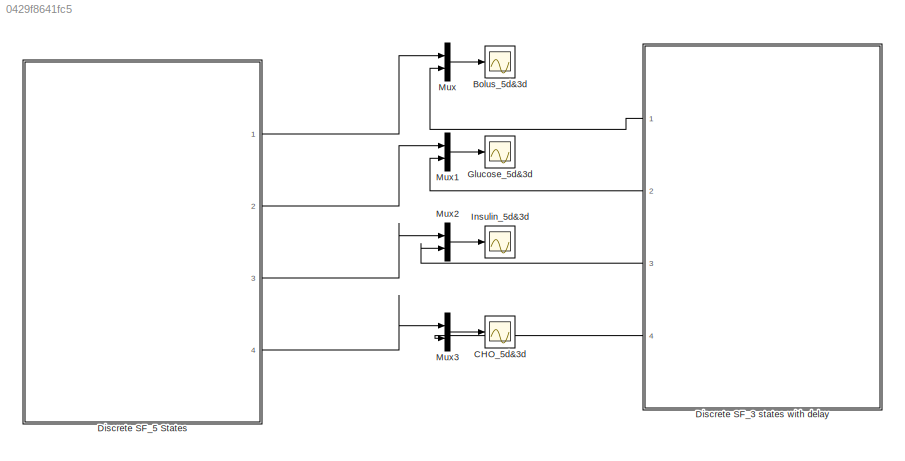
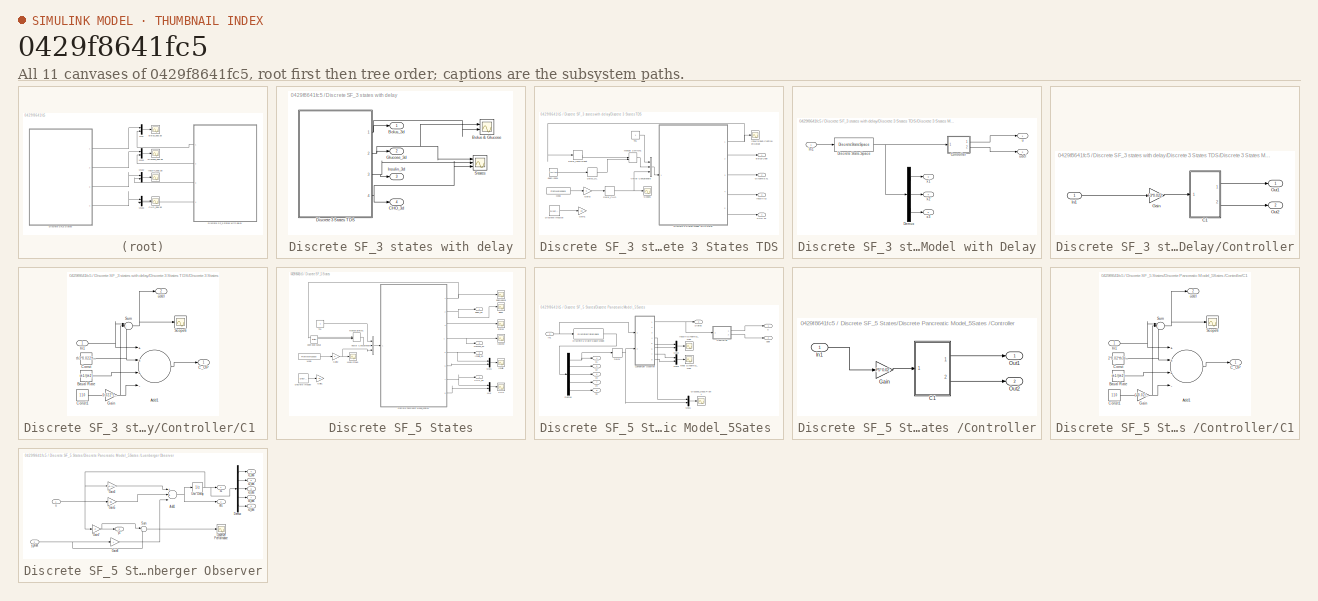
[diagram: thumbnail index - all 11 canvases of the model, root first then tree order]
MODEL slx_0429f8641fc5
KIND model
CONFIG AbsTol = auto
CONFIG EnableMultiTasking = off
CONFIG FixedStep = auto
CONFIG MaxStep = auto
CONFIG MinStep = auto
CONFIG RelTol = 1e-3
CONFIG SampleTimeConstraint = Unconstrained
CONFIG Solver = VariableStepAuto
CONFIG SolverName = VariableStepAuto
CONFIG StartTime = 0.0
CONFIG StopTime = 1500
BLOCK [Scope] Bolus_5d&3d
  Floating = off
  NumInputPorts = 1
  Ports = [1]
  ScopeSpecificationString = Simulink.scopes.TimeScopeBlockCfg('CurrentConfiguration', extmgr.ConfigurationSet(extmgr.Configuration('Core','General UI',true,'FigureColor',[1 1 1]),extmgr.Configuration('Core','Source UI',true),extmgr.Configuration('Sources','WiredSimulink',true,'DataLoggingVariableName','ScopeData2'),extmgr.Configuration('Visuals','Time Domain',true,'SerializedDisplays',{struct('MinYLimReal','-0.03779','MaxYLi...<+1790ch>
BLOCK [Scope] CHO_5d&3d
  Floating = off
  NumInputPorts = 1
  Ports = [1]
  ScopeSpecificationString = Simulink.scopes.TimeScopeBlockCfg('CurrentConfiguration', extmgr.ConfigurationSet(extmgr.Configuration('Core','General UI',true,'FigureColor',[1 1 1]),extmgr.Configuration('Core','Source UI',true),extmgr.Configuration('Sources','WiredSimulink',true,'DataLoggingVariableName','ScopeData5'),extmgr.Configuration('Visuals','Time Domain',true,'SerializedDisplays',{struct('MinYLimReal','-0.36577','MaxYLi...<+1806ch>
BLOCK [SubSystem] Discrete SF_3 states with delay
  Ports = [0, 4]
  RequestExecContextInheritance = off
BLOCK [Scope] Discrete SF_3 states with delay/Bolus & Glucose
  Floating = off
  NumInputPorts = 2
  Ports = [2]
  ScopeSpecificationString = Simulink.scopes.TimeScopeBlockCfg('CurrentConfiguration', extmgr.ConfigurationSet(extmgr.Configuration('Core','General UI',true),extmgr.Configuration('Core','Source UI',true),extmgr.Configuration('Sources','WiredSimulink',true,'DataLoggingVariableName','ScopeData2'),extmgr.Configuration('Visuals','Time Domain',true),extmgr.Configuration('Tools','Plot Navigation',true),extmgr.Configuration('Tools',...<+58ch>
BLOCK [Outport] Discrete SF_3 states with delay/Bolus_3d
  IconDisplay = Port number
BLOCK [Outport] Discrete SF_3 states with delay/CHO_3d
  IconDisplay = Port number
  Port = 4
BLOCK [SubSystem] Discrete SF_3 states with delay/Discrete 3 States TDS
  Ports = [0, 4]
  RequestExecContextInheritance = off
BLOCK [Outport] Discrete SF_3 states with delay/Discrete 3 States TDS/Bolus//Udel
  IconDisplay = Port number
BLOCK [Outport] Discrete SF_3 states with delay/Discrete 3 States TDS/CHO x3
  IconDisplay = Port number
  Port = 4
BLOCK [Delay] Discrete SF_3 states with delay/Discrete 3 States TDS/Delay_CHO
  DelayLength = 30
  InitialCondition = 0
  InputPortMap = u0
  Ports = [1, 1]
BLOCK [Delay] Discrete SF_3 states with delay/Discrete 3 States TDS/Delay_InsulinInput
  DelayLength = 20
  InitialCondition = th1/th2
  InputPortMap = u0
  Ports = [1, 1]
BLOCK [Delay] Discrete SF_3 states with delay/Discrete 3 States TDS/Delay_OL
  DelayLength = 15
  InitialCondition = th1/th2
  InputPortMap = u0
  Ports = [1, 1]
BLOCK [SubSystem] Discrete SF_3 states with delay/Discrete 3 States TDS/Discrete  3 States Model with Delay
  Ports = [1, 5]
  RequestExecContextInheritance = off
BLOCK [SubSystem] Discrete SF_3 states with delay/Discrete 3 States TDS/Discrete  3 States Model with Delay/Controller
  Ports = [1, 2]
  RequestExecContextInheritance = off
BLOCK [SubSystem] Discrete SF_3 states with delay/Discrete 3 States TDS/Discrete  3 States Model with Delay/Controller/C1 
  Ports = [1, 2]
  RequestExecContextInheritance = off
BLOCK [Sum] Discrete SF_3 states with delay/Discrete 3 States TDS/Discrete  3 States Model with Delay/Controller/C1 /Add1
  InputSameDT = off
  Inputs = +++-
  OutDataTypeStr = Inherit: Inherit via internal rule
  Ports = [4, 1]
  SaturateOnIntegerOverflow = off
BLOCK [Constant] Discrete SF_3 states with delay/Discrete 3 States TDS/Discrete  3 States Model with Delay/Controller/C1 /Basal Rate
  Value = th1/(th2)
  VectorParams1D = off
BLOCK [Outport] Discrete SF_3 states with delay/Discrete 3 States TDS/Discrete  3 States Model with Delay/Controller/C1 /C_OP
  IconDisplay = Port number
BLOCK [Constant] Discrete SF_3 states with delay/Discrete 3 States TDS/Discrete  3 States Model with Delay/Controller/C1 /Const
  Value = th3*0.022*th1/(th2)
  VectorParams1D = off
BLOCK [Constant] Discrete SF_3 states with delay/Discrete 3 States TDS/Discrete  3 States Model with Delay/Controller/C1 /Const1
  Value = 110
  VectorParams1D = off
BLOCK [Gain] Discrete SF_3 states with delay/Discrete 3 States TDS/Discrete  3 States Model with Delay/Controller/C1 /Gain
  Gain = 0.022*1/(th2)
  OutDataTypeStr = Inherit: Inherit via internal rule
  ParamDataTypeStr = Inherit: Inherit via internal rule
  SaturateOnIntegerOverflow = off
BLOCK [Inport] Discrete SF_3 states with delay/Discrete 3 States TDS/Discrete  3 States Model with Delay/Controller/C1 /In1
  IconDisplay = Port number
BLOCK [Scope] Discrete SF_3 states with delay/Discrete 3 States TDS/Discrete  3 States Model with Delay/Controller/C1 /Scope6
  Floating = off
  NumInputPorts = 1
  Ports = [1]
  ScopeSpecificationString = Simulink.scopes.TimeScopeBlockCfg('CurrentConfiguration', extmgr.ConfigurationSet(extmgr.Configuration('Core','General UI',true),extmgr.Configuration('Core','Source UI',true),extmgr.Configuration('Sources','WiredSimulink',true,'DataLoggingVariableName','ScopeData2'),extmgr.Configuration('Visuals','Time Domain',true,'SerializedDisplays',{struct('MinYLimReal','-11.05589','MaxYLimReal','18.15288','YL...<+1412ch>
BLOCK [Sum] Discrete SF_3 states with delay/Discrete 3 States TDS/Discrete  3 States Model with Delay/Controller/C1 /Sum
  IconShape = round
  InputSameDT = off
  Inputs = |+-+
  OutDataTypeStr = Inherit: Inherit via internal rule
  Ports = [3, 1]
  SaturateOnIntegerOverflow = off
BLOCK [Outport] Discrete SF_3 states with delay/Discrete 3 States TDS/Discrete  3 States Model with Delay/Controller/C1 /udel
  IconDisplay = Port number
  Port = 2
BLOCK [Gain] Discrete SF_3 states with delay/Discrete 3 States TDS/Discrete  3 States Model with Delay/Controller/Gain
  Gain = F3*0.022
  Multiplication = Matrix(K*u)
  OutDataTypeStr = Inherit: Inherit via internal rule
  ParamDataTypeStr = Inherit: Inherit via internal rule
  SaturateOnIntegerOverflow = off
BLOCK [Inport] Discrete SF_3 states with delay/Discrete 3 States TDS/Discrete  3 States Model with Delay/Controller/In1
  IconDisplay = Port number
BLOCK [Outport] Discrete SF_3 states with delay/Discrete 3 States TDS/Discrete  3 States Model with Delay/Controller/Out1
  IconDisplay = Port number
BLOCK [Outport] Discrete SF_3 states with delay/Discrete 3 States TDS/Discrete  3 States Model with Delay/Controller/Out2
  IconDisplay = Port number
  Port = 2
BLOCK [Demux] Discrete SF_3 states with delay/Discrete 3 States TDS/Discrete  3 States Model with Delay/Demux
  DisplayOption = bar
  Outputs = 3
  Ports = [1, 3]
BLOCK [DiscreteStateSpace] Discrete SF_3 states with delay/Discrete 3 States TDS/Discrete  3 States Model with Delay/Discrete State-Space
  A = A3
  B = B3
  C = C3
  D = D3
  InitialCondition = [110; th1/th2; 0]
  SampleTime = -1
  StateName = Glycemia
BLOCK [Inport] Discrete SF_3 states with delay/Discrete 3 States TDS/Discrete  3 States Model with Delay/In1
  IconDisplay = Port number
BLOCK [Outport] Discrete SF_3 states with delay/Discrete 3 States TDS/Discrete  3 States Model with Delay/u
  IconDisplay = Port number
BLOCK [Outport] Discrete SF_3 states with delay/Discrete 3 States TDS/Discrete  3 States Model with Delay/udel
  IconDisplay = Port number
  Port = 2
BLOCK [Outport] Discrete SF_3 states with delay/Discrete 3 States TDS/Discrete  3 States Model with Delay/x1
  IconDisplay = Port number
  Port = 3
BLOCK [Outport] Discrete SF_3 states with delay/Discrete 3 States TDS/Discrete  3 States Model with Delay/x2
  IconDisplay = Port number
  Port = 4
BLOCK [Outport] Discrete SF_3 states with delay/Discrete 3 States TDS/Discrete  3 States Model with Delay/x3
  IconDisplay = Port number
  Port = 5
BLOCK [Reference] Discrete SF_3 states with delay/Discrete 3 States TDS/Discrete Impulse  REF=dspsrcs4/Discrete 
Impulse
  Ports = [0, 1]
  SourceBlock = dspsrcs4/Discrete \nImpulse
  SourceProductBaseCode = DS
  SourceProductName = DSP System Toolbox
  SourceType = Discrete Impulse
BLOCK [Gain] Discrete SF_3 states with delay/Discrete 3 States TDS/Gain1
  Gain = 60
  OutDataTypeStr = Inherit: Inherit via internal rule
  ParamDataTypeStr = Inherit: Inherit via internal rule
  SaturateOnIntegerOverflow = off
BLOCK [Gain] Discrete SF_3 states with delay/Discrete 3 States TDS/Gain2
  OutDataTypeStr = Inherit: Inherit via internal rule
  ParamDataTypeStr = Inherit: Inherit via internal rule
  SaturateOnIntegerOverflow = off
BLOCK [Outport] Discrete SF_3 states with delay/Discrete 3 States TDS/Glycemia x1
  IconDisplay = Port number
  Port = 2
BLOCK [Outport] Discrete SF_3 states with delay/Discrete 3 States TDS/Insulin x2
  IconDisplay = Port number
  Port = 3
BLOCK [Scope] Discrete SF_3 states with delay/Discrete 3 States TDS/InsulinInput//ControllerOutput
  Floating = off
  NumInputPorts = 1
  Ports = [1]
  ScopeSpecificationString = Simulink.scopes.TimeScopeBlockCfg('CurrentConfiguration', extmgr.ConfigurationSet(extmgr.Configuration('Core','General UI',true,'FigureColor',[1 1 1]),extmgr.Configuration('Core','Source UI',true),extmgr.Configuration('Sources','WiredSimulink',true,'DataLoggingVariableName','ScopeData2'),extmgr.Configuration('Visuals','Time Domain',true,'SerializedDisplays',{struct('MinYLimReal','-0.01892','MaxYLi...<+1724ch>
BLOCK [ManualSwitch] Discrete SF_3 states with delay/Discrete 3 States TDS/Manual Switch1
BLOCK [FromWorkspace] Discrete SF_3 states with delay/Discrete 3 States TDS/Meal
  SampleTime = 0
  VariableName = [temps'  repas']
  ZeroCross = on
BLOCK [Scope] Discrete SF_3 states with delay/Discrete 3 States TDS/Scope1
  Floating = off
  NumInputPorts = 1
  Ports = [1]
  ScopeSpecificationString = Simulink.scopes.TimeScopeBlockCfg('CurrentConfiguration', extmgr.ConfigurationSet(extmgr.Configuration('Core','General UI',true,'FigureColor',[1 1 1]),extmgr.Configuration('Core','Source UI',true),extmgr.Configuration('Sources','WiredSimulink',true,'DataLoggingVariableName','ScopeData3'),extmgr.Configuration('Visuals','Time Domain',true,'SerializedDisplays',{struct('MinYLimReal','-0.375','MaxYLimR...<+1657ch>
BLOCK [Constant] Discrete SF_3 states with delay/Discrete 3 States TDS/Th1
BLOCK [Concatenate] Discrete SF_3 states with delay/Discrete 3 States TDS/Vector Concatenate
  NumInputs = 3
  Ports = [3, 1]
BLOCK [Constant] Discrete SF_3 states with delay/Discrete 3 States TDS/open loop1
  Value = th1/th2
BLOCK [Outport] Discrete SF_3 states with delay/Glucose_3d
  IconDisplay = Port number
  Port = 2
BLOCK [Outport] Discrete SF_3 states with delay/Insulin_3d
  IconDisplay = Port number
  Port = 3
BLOCK [Scope] Discrete SF_3 states with delay/States
  Floating = off
  NumInputPorts = 3
  Ports = [3]
  ScopeSpecificationString = Simulink.scopes.TimeScopeBlockCfg('CurrentConfiguration', extmgr.ConfigurationSet(extmgr.Configuration('Core','General UI',true),extmgr.Configuration('Core','Source UI',true),extmgr.Configuration('Sources','WiredSimulink',true,'DataLoggingVariableName','ScopeData1'),extmgr.Configuration('Visuals','Time Domain',true),extmgr.Configuration('Tools','Plot Navigation',true),extmgr.Configuration('Tools',...<+58ch>
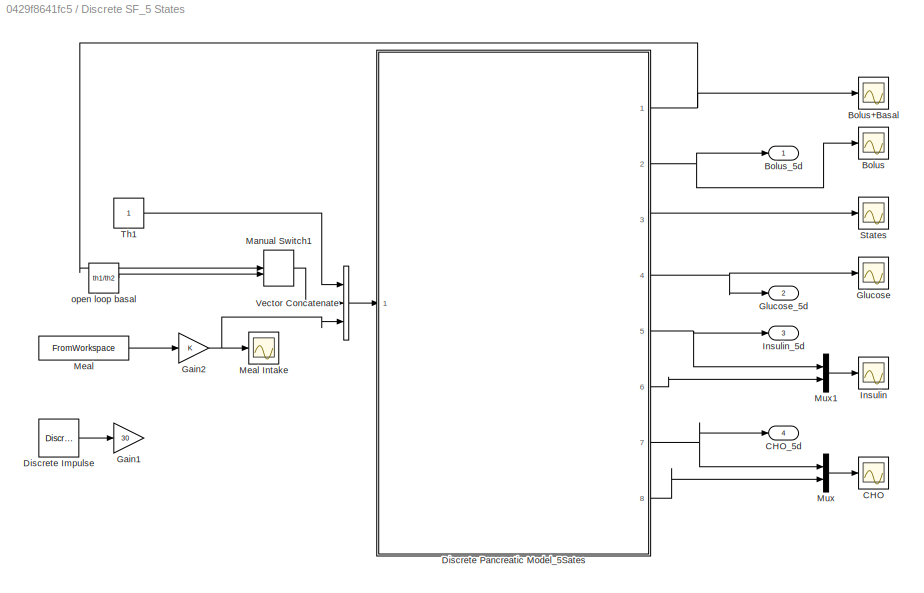
BLOCK [SubSystem] Discrete SF_5 States
  Ports = [0, 4]
  RequestExecContextInheritance = off
BLOCK [Scope] Discrete SF_5 States/Bolus
  Floating = off
  NumInputPorts = 1
  Ports = [1]
  ScopeSpecificationString = Simulink.scopes.TimeScopeBlockCfg('CurrentConfiguration', extmgr.ConfigurationSet(extmgr.Configuration('Core','General UI',true),extmgr.Configuration('Core','Source UI',true),extmgr.Configuration('Sources','WiredSimulink',true,'DataLoggingVariableName','ScopeData1'),extmgr.Configuration('Visuals','Time Domain',true,'SerializedDisplays',{struct('MinYLimReal','-0.00063','MaxYLimReal','0.00122','YLab...<+1550ch>
BLOCK [Scope] Discrete SF_5 States/Bolus+Basal
  Floating = off
  NumInputPorts = 1
  Ports = [1]
  ScopeSpecificationString = Simulink.scopes.TimeScopeBlockCfg('CurrentConfiguration', extmgr.ConfigurationSet(extmgr.Configuration('Core','General UI',true,'FigureColor',[1 1 1]),extmgr.Configuration('Core','Source UI',true),extmgr.Configuration('Sources','WiredSimulink',true,'DataLoggingVariableName','ScopeData2'),extmgr.Configuration('Visuals','Time Domain',true,'SerializedDisplays',{struct('MinYLimReal','0.01631','MaxYLim...<+1659ch>
BLOCK [Outport] Discrete SF_5 States/Bolus_5d
  IconDisplay = Port number
BLOCK [Scope] Discrete SF_5 States/CHO
  Floating = off
  NumInputPorts = 1
  Ports = [1]
  ScopeSpecificationString = Simulink.scopes.TimeScopeBlockCfg('CurrentConfiguration', extmgr.ConfigurationSet(extmgr.Configuration('Core','General UI',true,'FigureColor',[1 1 1]),extmgr.Configuration('Core','Source UI',true),extmgr.Configuration('Sources','WiredSimulink',true,'DataLoggingVariableName','ScopeData5'),extmgr.Configuration('Visuals','Time Domain',true,'SerializedDisplays',{struct('MinYLimReal','-0.15862','MaxYLi...<+1866ch>
BLOCK [Outport] Discrete SF_5 States/CHO_5d
  IconDisplay = Port number
  Port = 4
BLOCK [Reference] Discrete SF_5 States/Discrete Impulse  REF=dspsrcs4/Discrete 
Impulse
  Ports = [0, 1]
  SourceBlock = dspsrcs4/Discrete \nImpulse
  SourceProductBaseCode = DS
  SourceProductName = DSP System Toolbox
  SourceType = Discrete Impulse
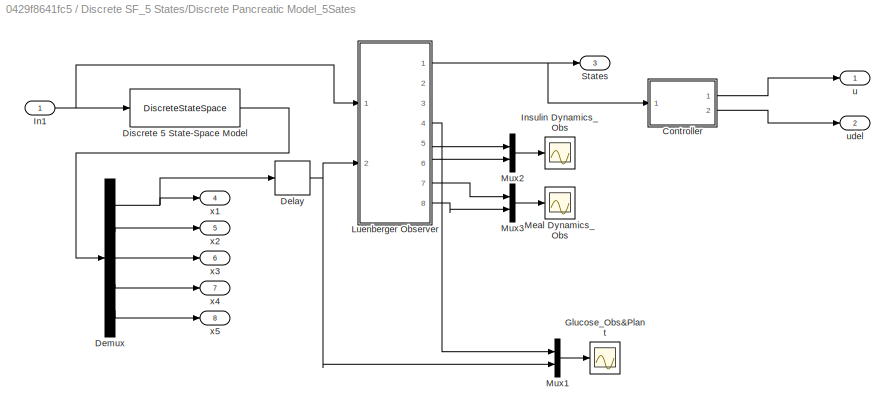
BLOCK [SubSystem] Discrete SF_5 States/Discrete Pancreatic Model_5Sates 
  Ports = [1, 8]
  RequestExecContextInheritance = off
BLOCK [SubSystem] Discrete SF_5 States/Discrete Pancreatic Model_5Sates /Controller
  Ports = [1, 2]
  RequestExecContextInheritance = off
BLOCK [SubSystem] Discrete SF_5 States/Discrete Pancreatic Model_5Sates /Controller/C1
  Ports = [1, 2]
  RequestExecContextInheritance = off
BLOCK [Sum] Discrete SF_5 States/Discrete Pancreatic Model_5Sates /Controller/C1/Add1
  InputSameDT = off
  Inputs = +++-
  OutDataTypeStr = Inherit: Inherit via internal rule
  Ports = [4, 1]
  SaturateOnIntegerOverflow = off
BLOCK [Constant] Discrete SF_5 States/Discrete Pancreatic Model_5Sates /Controller/C1/Basal Rate
  Value = th1/(th2)
  VectorParams1D = off
BLOCK [Outport] Discrete SF_5 States/Discrete Pancreatic Model_5Sates /Controller/C1/C_OP
  IconDisplay = Port number
BLOCK [Constant] Discrete SF_5 States/Discrete Pancreatic Model_5Sates /Controller/C1/Const
  Value = 2*0.02*th3*th1/(th2)
  VectorParams1D = off
BLOCK [Constant] Discrete SF_5 States/Discrete Pancreatic Model_5Sates /Controller/C1/Const1
  Value = 110
  VectorParams1D = off
BLOCK [Gain] Discrete SF_5 States/Discrete Pancreatic Model_5Sates /Controller/C1/Gain
  Gain = 1*0.02/(th2)
  OutDataTypeStr = Inherit: Inherit via internal rule
  ParamDataTypeStr = Inherit: Inherit via internal rule
  SaturateOnIntegerOverflow = off
BLOCK [Inport] Discrete SF_5 States/Discrete Pancreatic Model_5Sates /Controller/C1/In1
  IconDisplay = Port number
BLOCK [Scope] Discrete SF_5 States/Discrete Pancreatic Model_5Sates /Controller/C1/Scope6
  Floating = off
  NumInputPorts = 1
  Ports = [1]
  ScopeSpecificationString = Simulink.scopes.TimeScopeBlockCfg('CurrentConfiguration', extmgr.ConfigurationSet(extmgr.Configuration('Core','General UI',true),extmgr.Configuration('Core','Source UI',true),extmgr.Configuration('Sources','WiredSimulink',true,'DataLoggingVariableName','ScopeData2'),extmgr.Configuration('Visuals','Time Domain',true,'SerializedDisplays',{struct('MinYLimReal','-0.02864','MaxYLimReal','0.20318','YLab...<+1406ch>
BLOCK [Sum] Discrete SF_5 States/Discrete Pancreatic Model_5Sates /Controller/C1/Sum
  IconShape = round
  InputSameDT = off
  Inputs = |+-+
  OutDataTypeStr = Inherit: Inherit via internal rule
  Ports = [3, 1]
  SaturateOnIntegerOverflow = off
BLOCK [Outport] Discrete SF_5 States/Discrete Pancreatic Model_5Sates /Controller/C1/udel
  IconDisplay = Port number
  Port = 2
BLOCK [Gain] Discrete SF_5 States/Discrete Pancreatic Model_5Sates /Controller/Gain
  Gain = F5*0.02
  Multiplication = Matrix(K*u)
  OutDataTypeStr = Inherit: Inherit via internal rule
  ParamDataTypeStr = Inherit: Inherit via internal rule
  SaturateOnIntegerOverflow = off
BLOCK [Inport] Discrete SF_5 States/Discrete Pancreatic Model_5Sates /Controller/In1
  IconDisplay = Port number
BLOCK [Outport] Discrete SF_5 States/Discrete Pancreatic Model_5Sates /Controller/Out1
  IconDisplay = Port number
BLOCK [Outport] Discrete SF_5 States/Discrete Pancreatic Model_5Sates /Controller/Out2
  IconDisplay = Port number
  Port = 2
BLOCK [Delay] Discrete SF_5 States/Discrete Pancreatic Model_5Sates /Delay
  DelayLength = 5
  InitialCondition = 110
  InputPortMap = u0
  Ports = [1, 1]
BLOCK [Demux] Discrete SF_5 States/Discrete Pancreatic Model_5Sates /Demux
  DisplayOption = bar
  Outputs = 5
  Ports = [1, 5]
BLOCK [DiscreteStateSpace] Discrete SF_5 States/Discrete Pancreatic Model_5Sates /Discrete 5 State-Space Model
  A = A5
  B = B5
  C = C5
  D = D5
  InitialCondition = [110; th1/th2; th1/th2; 0; 0]
  SampleTime = -1
  StateName = Glycemia
BLOCK [Scope] Discrete SF_5 States/Discrete Pancreatic Model_5Sates /Glucose_Obs&Plant
  Floating = off
  NumInputPorts = 1
  Ports = [1]
  ScopeSpecificationString = Simulink.scopes.TimeScopeBlockCfg('CurrentConfiguration', extmgr.ConfigurationSet(extmgr.Configuration('Core','General UI',true,'FigureColor',[1 1 1]),extmgr.Configuration('Core','Source UI',true),extmgr.Configuration('Sources','WiredSimulink',true,'DataLoggingVariableName','ScopeData1'),extmgr.Configuration('Visuals','Time Domain',true,'SerializedDisplays',{struct('MinYLimReal','95.68344','MaxYLi...<+1861ch>
BLOCK [Inport] Discrete SF_5 States/Discrete Pancreatic Model_5Sates /In1
  IconDisplay = Port number
BLOCK [Scope] Discrete SF_5 States/Discrete Pancreatic Model_5Sates /Insulin Dynamics_Obs
  Floating = off
  NumInputPorts = 1
  Ports = [1]
  ScopeSpecificationString = Simulink.scopes.TimeScopeBlockCfg('CurrentConfiguration', extmgr.ConfigurationSet(extmgr.Configuration('Core','General UI',true,'FigureColor',[1 1 1]),extmgr.Configuration('Core','Source UI',true),extmgr.Configuration('Sources','WiredSimulink',true,'DataLoggingVariableName','ScopeData2'),extmgr.Configuration('Visuals','Time Domain',true,'SerializedDisplays',{struct('MinYLimReal','0.00955','MaxYLim...<+1889ch>
BLOCK [SubSystem] Discrete SF_5 States/Discrete Pancreatic Model_5Sates /Luenberger Observer
  Ports = [2, 8]
  RequestExecContextInheritance = off
BLOCK [Sum] Discrete SF_5 States/Discrete Pancreatic Model_5Sates /Luenberger Observer/Add1
  InputSameDT = off
  Inputs = 3
  OutDataTypeStr = Inherit: Inherit via internal rule
  Ports = [3, 1]
  SaturateOnIntegerOverflow = off
BLOCK [Demux] Discrete SF_5 States/Discrete Pancreatic Model_5Sates /Luenberger Observer/Demux
  DisplayOption = bar
  Outputs = 5
  Ports = [1, 5]
BLOCK [Gain] Discrete SF_5 States/Discrete Pancreatic Model_5Sates /Luenberger Observer/Gain3
  Gain = (A5-(L*C))
  Multiplication = Matrix(K*u)
  OutDataTypeStr = Inherit: Inherit via internal rule
  ParamDataTypeStr = Inherit: Inherit via internal rule
  SaturateOnIntegerOverflow = off
BLOCK [Gain] Discrete SF_5 States/Discrete Pancreatic Model_5Sates /Luenberger Observer/Gain5
  Gain = B5
  Multiplication = Matrix(K*u)
  OutDataTypeStr = Inherit: Inherit via internal rule
  ParamDataTypeStr = Inherit: Inherit via internal rule
  SaturateOnIntegerOverflow = off
BLOCK [Gain] Discrete SF_5 States/Discrete Pancreatic Model_5Sates /Luenberger Observer/Gain7
  Gain = C
  Multiplication = Matrix(K*u)
  OutDataTypeStr = Inherit: Inherit via internal rule
  ParamDataTypeStr = Inherit: Inherit via internal rule
  SaturateOnIntegerOverflow = off
BLOCK [Gain] Discrete SF_5 States/Discrete Pancreatic Model_5Sates /Luenberger Observer/Gain8
  Gain = L
  OutDataTypeStr = Inherit: Inherit via internal rule
  ParamDataTypeStr = Inherit: Inherit via internal rule
  SaturateOnIntegerOverflow = off
BLOCK [Scope] Discrete SF_5 States/Discrete Pancreatic Model_5Sates /Luenberger Observer/Observer Performance
  Floating = off
  NumInputPorts = 1
  Ports = [1]
  ScopeSpecificationString = Simulink.scopes.TimeScopeBlockCfg('CurrentConfiguration', extmgr.ConfigurationSet(extmgr.Configuration('Core','General UI',true,'FigureColor',[1 1 1]),extmgr.Configuration('Core','Source UI',true),extmgr.Configuration('Sources','WiredSimulink',true,'DataLoggingVariableName','ScopeData1'),extmgr.Configuration('Visuals','Time Domain',true,'SerializedDisplays',{struct('MinYLimReal','-4.37499','MaxYLi...<+1612ch>
BLOCK [Sum] Discrete SF_5 States/Discrete Pancreatic Model_5Sates /Luenberger Observer/Sum
  IconShape = round
  InputSameDT = off
  Inputs = |+-
  OutDataTypeStr = Inherit: Inherit via internal rule
  Ports = [2, 1]
  SaturateOnIntegerOverflow = off
BLOCK [UnitDelay] Discrete SF_5 States/Discrete Pancreatic Model_5Sates /Luenberger Observer/Unit Delay
  HasFrameUpgradeWarning = on
  InitialCondition = [115; th1/th2; th1/th2; 0; 0]
  SampleTime = -1
BLOCK [Outport] Discrete SF_5 States/Discrete Pancreatic Model_5Sates /Luenberger Observer/dx1
  IconDisplay = Port number
  Port = 2
BLOCK [Inport] Discrete SF_5 States/Discrete Pancreatic Model_5Sates /Luenberger Observer/u
  IconDisplay = Port number
BLOCK [Outport] Discrete SF_5 States/Discrete Pancreatic Model_5Sates /Luenberger Observer/x1
  IconDisplay = Port number
BLOCK [Outport] Discrete SF_5 States/Discrete Pancreatic Model_5Sates /Luenberger Observer/x1_obs
  IconDisplay = Port number
  Port = 4
BLOCK [Outport] Discrete SF_5 States/Discrete Pancreatic Model_5Sates /Luenberger Observer/x2_obs
  IconDisplay = Port number
  Port = 5
BLOCK [Outport] Discrete SF_5 States/Discrete Pancreatic Model_5Sates /Luenberger Observer/x3_obs
  IconDisplay = Port number
  Port = 6
BLOCK [Outport] Discrete SF_5 States/Discrete Pancreatic Model_5Sates /Luenberger Observer/x4_obs
  IconDisplay = Port number
  Port = 7
BLOCK [Outport] Discrete SF_5 States/Discrete Pancreatic Model_5Sates /Luenberger Observer/x5_obs
  IconDisplay = Port number
  Port = 8
BLOCK [Outport] Discrete SF_5 States/Discrete Pancreatic Model_5Sates /Luenberger Observer/y1
  IconDisplay = Port number
  Port = 3
BLOCK [Inport] Discrete SF_5 States/Discrete Pancreatic Model_5Sates /Luenberger Observer/y_plant 
  IconDisplay = Port number
  Port = 2
BLOCK [Scope] Discrete SF_5 States/Discrete Pancreatic Model_5Sates /Meal Dynamics_Obs
  Floating = off
  NumInputPorts = 1
  Ports = [1]
  ScopeSpecificationString = Simulink.scopes.TimeScopeBlockCfg('CurrentConfiguration', extmgr.ConfigurationSet(extmgr.Configuration('Core','General UI',true,'FigureColor',[1 1 1]),extmgr.Configuration('Core','Source UI',true),extmgr.Configuration('Sources','WiredSimulink',true,'DataLoggingVariableName','ScopeData3'),extmgr.Configuration('Visuals','Time Domain',true,'SerializedDisplays',{struct('MinYLimReal','-0.24118','MaxYLi...<+1886ch>
BLOCK [Mux] Discrete SF_5 States/Discrete Pancreatic Model_5Sates /Mux1
  DisplayOption = bar
  Inputs = 2
  Ports = [2, 1]
BLOCK [Mux] Discrete SF_5 States/Discrete Pancreatic Model_5Sates /Mux2
  DisplayOption = bar
  Inputs = 2
  Ports = [2, 1]
BLOCK [Mux] Discrete SF_5 States/Discrete Pancreatic Model_5Sates /Mux3
  DisplayOption = bar
  Inputs = 2
  Ports = [2, 1]
BLOCK [Outport] Discrete SF_5 States/Discrete Pancreatic Model_5Sates /States
  IconDisplay = Port number
  Port = 3
BLOCK [Outport] Discrete SF_5 States/Discrete Pancreatic Model_5Sates /u
  IconDisplay = Port number
BLOCK [Outport] Discrete SF_5 States/Discrete Pancreatic Model_5Sates /udel
  IconDisplay = Port number
  Port = 2
BLOCK [Outport] Discrete SF_5 States/Discrete Pancreatic Model_5Sates /x1
  IconDisplay = Port number
  Port = 4
BLOCK [Outport] Discrete SF_5 States/Discrete Pancreatic Model_5Sates /x2
  IconDisplay = Port number
  Port = 5
BLOCK [Outport] Discrete SF_5 States/Discrete Pancreatic Model_5Sates /x3
  IconDisplay = Port number
  Port = 6
BLOCK [Outport] Discrete SF_5 States/Discrete Pancreatic Model_5Sates /x4
  IconDisplay = Port number
  Port = 7
BLOCK [Outport] Discrete SF_5 States/Discrete Pancreatic Model_5Sates /x5
  IconDisplay = Port number
  Port = 8
BLOCK [Gain] Discrete SF_5 States/Gain1
  Gain = 30
  OutDataTypeStr = Inherit: Inherit via internal rule
  ParamDataTypeStr = Inherit: Inherit via internal rule
  SaturateOnIntegerOverflow = off
BLOCK [Gain] Discrete SF_5 States/Gain2
  OutDataTypeStr = Inherit: Inherit via internal rule
  ParamDataTypeStr = Inherit: Inherit via internal rule
  SaturateOnIntegerOverflow = off
BLOCK [Scope] Discrete SF_5 States/Glucose
  Floating = off
  NumInputPorts = 1
  Ports = [1]
  ScopeSpecificationString = Simulink.scopes.TimeScopeBlockCfg('CurrentConfiguration', extmgr.ConfigurationSet(extmgr.Configuration('Core','General UI',true,'FigureColor',[1 1 1]),extmgr.Configuration('Core','Source UI',true),extmgr.Configuration('Sources','WiredSimulink',true,'DataLoggingVariableName','ScopeData1'),extmgr.Configuration('Visuals','Time Domain',true,'SerializedDisplays',{struct('MinYLimReal','94.22335','MaxYLi...<+1745ch>
BLOCK [Outport] Discrete SF_5 States/Glucose_5d
  IconDisplay = Port number
  Port = 2
BLOCK [Scope] Discrete SF_5 States/Insulin
  Floating = off
  NumInputPorts = 1
  Ports = [1]
  ScopeSpecificationString = Simulink.scopes.TimeScopeBlockCfg('CurrentConfiguration', extmgr.ConfigurationSet(extmgr.Configuration('Core','General UI',true,'FigureColor',[1 1 1]),extmgr.Configuration('Core','Source UI',true),extmgr.Configuration('Sources','WiredSimulink',true,'DataLoggingVariableName','ScopeData4'),extmgr.Configuration('Visuals','Time Domain',true,'SerializedDisplays',{struct('MinYLimReal','0.01207','MaxYLim...<+1888ch>
BLOCK [Outport] Discrete SF_5 States/Insulin_5d
  IconDisplay = Port number
  Port = 3
BLOCK [ManualSwitch] Discrete SF_5 States/Manual Switch1
BLOCK [FromWorkspace] Discrete SF_5 States/Meal
  SampleTime = 0
  VariableName = [temps'  repas']
  ZeroCross = on
BLOCK [Scope] Discrete SF_5 States/Meal Intake
  Floating = off
  NumInputPorts = 1
  Ports = [1]
  ScopeSpecificationString = Simulink.scopes.TimeScopeBlockCfg('CurrentConfiguration', extmgr.ConfigurationSet(extmgr.Configuration('Core','General UI',true,'FigureColor',[1 1 1]),extmgr.Configuration('Core','Source UI',true),extmgr.Configuration('Sources','WiredSimulink',true,'DataLoggingVariableName','ScopeData3'),extmgr.Configuration('Visuals','Time Domain',true,'SerializedDisplays',{struct('MinYLimReal','-0.375','MaxYLimR...<+1760ch>
BLOCK [Mux] Discrete SF_5 States/Mux
  DisplayOption = bar
  Inputs = 2
  Ports = [2, 1]
BLOCK [Mux] Discrete SF_5 States/Mux1
  DisplayOption = bar
  Inputs = 2
  Ports = [2, 1]
BLOCK [Scope] Discrete SF_5 States/States
  Floating = off
  NumInputPorts = 1
  Ports = [1]
  ScopeSpecificationString = Simulink.scopes.TimeScopeBlockCfg('CurrentConfiguration', extmgr.ConfigurationSet(extmgr.Configuration('Core','General UI',true),extmgr.Configuration('Core','Source UI',true),extmgr.Configuration('Sources','WiredSimulink',true,'DataLoggingVariableName','ScopeData3'),extmgr.Configuration('Visuals','Time Domain',true,'SerializedDisplays',{struct('MinYLimReal','-1.85197','MaxYLimReal','2.77683','YLab...<+1712ch>
BLOCK [Constant] Discrete SF_5 States/Th1
BLOCK [Concatenate] Discrete SF_5 States/Vector Concatenate
  NumInputs = 3
  Ports = [3, 1]
BLOCK [Constant] Discrete SF_5 States/open loop basal
  Value = th1/th2
BLOCK [Scope] Glucose_5d&3d
  Floating = off
  NumInputPorts = 1
  Ports = [1]
  ScopeSpecificationString = Simulink.scopes.TimeScopeBlockCfg('CurrentConfiguration', extmgr.ConfigurationSet(extmgr.Configuration('Core','General UI',true,'FigureColor',[1 1 1]),extmgr.Configuration('Core','Source UI',true),extmgr.Configuration('Sources','WiredSimulink',true,'DataLoggingVariableName','ScopeData3'),extmgr.Configuration('Visuals','Time Domain',true,'SerializedDisplays',{struct('MinYLimReal','80.89757','MaxYLi...<+1822ch>
BLOCK [Scope] Insulin_5d&3d
  Floating = off
  NumInputPorts = 1
  Ports = [1]
  ScopeSpecificationString = Simulink.scopes.TimeScopeBlockCfg('CurrentConfiguration', extmgr.ConfigurationSet(extmgr.Configuration('Core','General UI',true,'FigureColor',[1 1 1]),extmgr.Configuration('Core','Source UI',true),extmgr.Configuration('Sources','WiredSimulink',true,'DataLoggingVariableName','ScopeData4'),extmgr.Configuration('Visuals','Time Domain',true,'SerializedDisplays',{struct('MinYLimReal','0.01067','MaxYLim...<+1824ch>
BLOCK [Mux] Mux
  DisplayOption = bar
  Inputs = 2
  Ports = [2, 1]
BLOCK [Mux] Mux1
  DisplayOption = bar
  Inputs = 2
  Ports = [2, 1]
BLOCK [Mux] Mux2
  DisplayOption = bar
  Inputs = 2
  Ports = [2, 1]
BLOCK [Mux] Mux3
  DisplayOption = bar
  Inputs = 2
  Ports = [2, 1]
NET Discrete SF_3 states with delay/Discrete 3 States TDS/Delay_CHO:1 -> Discrete SF_3 states with delay/Discrete 3 States TDS/Scope1:1, Discrete SF_3 states with delay/Discrete 3 States TDS/Vector Concatenate:3
LINE Discrete SF_3 states with delay/Discrete 3 States TDS/Delay_InsulinInput:1 -> Discrete SF_3 states with delay/Discrete 3 States TDS/Manual Switch1:1
LINE Discrete SF_3 states with delay/Discrete 3 States TDS/Delay_OL:1 -> Discrete SF_3 states with delay/Discrete 3 States TDS/Manual Switch1:2
LINE Discrete SF_3 states with delay/Discrete 3 States TDS/Discrete  3 States Model with Delay/Controller/C1 /Add1:1 -> Discrete SF_3 states with delay/Discrete 3 States TDS/Discrete  3 States Model with Delay/Controller/C1 /C_OP:1
LINE Discrete SF_3 states with delay/Discrete 3 States TDS/Discrete  3 States Model with Delay/Controller/C1 /Basal Rate:1 -> Discrete SF_3 states with delay/Discrete 3 States TDS/Discrete  3 States Model with Delay/Controller/C1 /Add1:3
LINE Discrete SF_3 states with delay/Discrete 3 States TDS/Discrete  3 States Model with Delay/Controller/C1 /Const1:1 -> Discrete SF_3 states with delay/Discrete 3 States TDS/Discrete  3 States Model with Delay/Controller/C1 /Gain:1
NET Discrete SF_3 states with delay/Discrete 3 States TDS/Discrete  3 States Model with Delay/Controller/C1 /Const:1 -> Discrete SF_3 states with delay/Discrete 3 States TDS/Discrete  3 States Model with Delay/Controller/C1 /Add1:2, Discrete SF_3 states with delay/Discrete 3 States TDS/Discrete  3 States Model with Delay/Controller/C1 /Sum:3
NET Discrete SF_3 states with delay/Discrete 3 States TDS/Discrete  3 States Model with Delay/Controller/C1 /Gain:1 -> Discrete SF_3 states with delay/Discrete 3 States TDS/Discrete  3 States Model with Delay/Controller/C1 /Add1:4, Discrete SF_3 states with delay/Discrete 3 States TDS/Discrete  3 States Model with Delay/Controller/C1 /Sum:2
NET Discrete SF_3 states with delay/Discrete 3 States TDS/Discrete  3 States Model with Delay/Controller/C1 /In1:1 -> Discrete SF_3 states with delay/Discrete 3 States TDS/Discrete  3 States Model with Delay/Controller/C1 /Add1:1, Discrete SF_3 states with delay/Discrete 3 States TDS/Discrete  3 States Model with Delay/Controller/C1 /Sum:1
NET Discrete SF_3 states with delay/Discrete 3 States TDS/Discrete  3 States Model with Delay/Controller/C1 /Sum:1 -> Discrete SF_3 states with delay/Discrete 3 States TDS/Discrete  3 States Model with Delay/Controller/C1 /Scope6:1, Discrete SF_3 states with delay/Discrete 3 States TDS/Discrete  3 States Model with Delay/Controller/C1 /udel:1
LINE Discrete SF_3 states with delay/Discrete 3 States TDS/Discrete  3 States Model with Delay/Controller/C1 :1 -> Discrete SF_3 states with delay/Discrete 3 States TDS/Discrete  3 States Model with Delay/Controller/Out1:1
LINE Discrete SF_3 states with delay/Discrete 3 States TDS/Discrete  3 States Model with Delay/Controller/C1 :2 -> Discrete SF_3 states with delay/Discrete 3 States TDS/Discrete  3 States Model with Delay/Controller/Out2:1
LINE Discrete SF_3 states with delay/Discrete 3 States TDS/Discrete  3 States Model with Delay/Controller/Gain:1 -> Discrete SF_3 states with delay/Discrete 3 States TDS/Discrete  3 States Model with Delay/Controller/C1 :1
LINE Discrete SF_3 states with delay/Discrete 3 States TDS/Discrete  3 States Model with Delay/Controller/In1:1 -> Discrete SF_3 states with delay/Discrete 3 States TDS/Discrete  3 States Model with Delay/Controller/Gain:1
LINE Discrete SF_3 states with delay/Discrete 3 States TDS/Discrete  3 States Model with Delay/Controller:1 -> Discrete SF_3 states with delay/Discrete 3 States TDS/Discrete  3 States Model with Delay/u:1
LINE Discrete SF_3 states with delay/Discrete 3 States TDS/Discrete  3 States Model with Delay/Controller:2 -> Discrete SF_3 states with delay/Discrete 3 States TDS/Discrete  3 States Model with Delay/udel:1
LINE Discrete SF_3 states with delay/Discrete 3 States TDS/Discrete  3 States Model with Delay/Demux:1 -> Discrete SF_3 states with delay/Discrete 3 States TDS/Discrete  3 States Model with Delay/x1:1
LINE Discrete SF_3 states with delay/Discrete 3 States TDS/Discrete  3 States Model with Delay/Demux:2 -> Discrete SF_3 states with delay/Discrete 3 States TDS/Discrete  3 States Model with Delay/x2:1
LINE Discrete SF_3 states with delay/Discrete 3 States TDS/Discrete  3 States Model with Delay/Demux:3 -> Discrete SF_3 states with delay/Discrete 3 States TDS/Discrete  3 States Model with Delay/x3:1
NET Discrete SF_3 states with delay/Discrete 3 States TDS/Discrete  3 States Model with Delay/Discrete State-Space:1 -> Discrete SF_3 states with delay/Discrete 3 States TDS/Discrete  3 States Model with Delay/Controller:1, Discrete SF_3 states with delay/Discrete 3 States TDS/Discrete  3 States Model with Delay/Demux:1
LINE Discrete SF_3 states with delay/Discrete 3 States TDS/Discrete  3 States Model with Delay/In1:1 -> Discrete SF_3 states with delay/Discrete 3 States TDS/Discrete  3 States Model with Delay/Discrete State-Space:1
NET Discrete SF_3 states with delay/Discrete 3 States TDS/Discrete  3 States Model with Delay:1 -> Discrete SF_3 states with delay/Discrete 3 States TDS/Delay_InsulinInput:1, Discrete SF_3 states with delay/Discrete 3 States TDS/InsulinInput//ControllerOutput:1
LINE Discrete SF_3 states with delay/Discrete 3 States TDS/Discrete  3 States Model with Delay:2 -> Discrete SF_3 states with delay/Discrete 3 States TDS/Bolus//Udel:1
LINE Discrete SF_3 states with delay/Discrete 3 States TDS/Discrete  3 States Model with Delay:3 -> Discrete SF_3 states with delay/Discrete 3 States TDS/Glycemia x1:1
LINE Discrete SF_3 states with delay/Discrete 3 States TDS/Discrete  3 States Model with Delay:4 -> Discrete SF_3 states with delay/Discrete 3 States TDS/Insulin x2:1
LINE Discrete SF_3 states with delay/Discrete 3 States TDS/Discrete  3 States Model with Delay:5 -> Discrete SF_3 states with delay/Discrete 3 States TDS/CHO x3:1
LINE Discrete SF_3 states with delay/Discrete 3 States TDS/Discrete Impulse:1 -> Discrete SF_3 states with delay/Discrete 3 States TDS/Gain1:1
LINE Discrete SF_3 states with delay/Discrete 3 States TDS/Gain2:1 -> Discrete SF_3 states with delay/Discrete 3 States TDS/Delay_CHO:1
LINE Discrete SF_3 states with delay/Discrete 3 States TDS/Manual Switch1:1 -> Discrete SF_3 states with delay/Discrete 3 States TDS/Vector Concatenate:2
LINE Discrete SF_3 states with delay/Discrete 3 States TDS/Meal:1 -> Discrete SF_3 states with delay/Discrete 3 States TDS/Gain2:1
LINE Discrete SF_3 states with delay/Discrete 3 States TDS/Th1:1 -> Discrete SF_3 states with delay/Discrete 3 States TDS/Vector Concatenate:1
LINE Discrete SF_3 states with delay/Discrete 3 States TDS/Vector Concatenate:1 -> Discrete SF_3 states with delay/Discrete 3 States TDS/Discrete  3 States Model with Delay:1
LINE Discrete SF_3 states with delay/Discrete 3 States TDS/open loop1:1 -> Discrete SF_3 states with delay/Discrete 3 States TDS/Delay_OL:1
NET Discrete SF_3 states with delay/Discrete 3 States TDS:1 -> Discrete SF_3 states with delay/Bolus & Glucose:2, Discrete SF_3 states with delay/Bolus_3d:1
NET Discrete SF_3 states with delay/Discrete 3 States TDS:2 -> Discrete SF_3 states with delay/Bolus & Glucose:1, Discrete SF_3 states with delay/Glucose_3d:1, Discrete SF_3 states with delay/States:1
NET Discrete SF_3 states with delay/Discrete 3 States TDS:3 -> Discrete SF_3 states with delay/Insulin_3d:1, Discrete SF_3 states with delay/States:2
NET Discrete SF_3 states with delay/Discrete 3 States TDS:4 -> Discrete SF_3 states with delay/CHO_3d:1, Discrete SF_3 states with delay/States:3
LINE Discrete SF_3 states with delay:1 -> Mux:2
LINE Discrete SF_3 states with delay:2 -> Mux1:2
LINE Discrete SF_3 states with delay:3 -> Mux2:2
LINE Discrete SF_3 states with delay:4 -> Mux3:2
LINE Discrete SF_5 States/Discrete Impulse:1 -> Discrete SF_5 States/Gain1:1
LINE Discrete SF_5 States/Discrete Pancreatic Model_5Sates /Controller/C1/Add1:1 -> Discrete SF_5 States/Discrete Pancreatic Model_5Sates /Controller/C1/C_OP:1
LINE Discrete SF_5 States/Discrete Pancreatic Model_5Sates /Controller/C1/Basal Rate:1 -> Discrete SF_5 States/Discrete Pancreatic Model_5Sates /Controller/C1/Add1:3
LINE Discrete SF_5 States/Discrete Pancreatic Model_5Sates /Controller/C1/Const1:1 -> Discrete SF_5 States/Discrete Pancreatic Model_5Sates /Controller/C1/Gain:1
NET Discrete SF_5 States/Discrete Pancreatic Model_5Sates /Controller/C1/Const:1 -> Discrete SF_5 States/Discrete Pancreatic Model_5Sates /Controller/C1/Add1:2, Discrete SF_5 States/Discrete Pancreatic Model_5Sates /Controller/C1/Sum:3
NET Discrete SF_5 States/Discrete Pancreatic Model_5Sates /Controller/C1/Gain:1 -> Discrete SF_5 States/Discrete Pancreatic Model_5Sates /Controller/C1/Add1:4, Discrete SF_5 States/Discrete Pancreatic Model_5Sates /Controller/C1/Sum:2
NET Discrete SF_5 States/Discrete Pancreatic Model_5Sates /Controller/C1/In1:1 -> Discrete SF_5 States/Discrete Pancreatic Model_5Sates /Controller/C1/Add1:1, Discrete SF_5 States/Discrete Pancreatic Model_5Sates /Controller/C1/Sum:1
NET Discrete SF_5 States/Discrete Pancreatic Model_5Sates /Controller/C1/Sum:1 -> Discrete SF_5 States/Discrete Pancreatic Model_5Sates /Controller/C1/Scope6:1, Discrete SF_5 States/Discrete Pancreatic Model_5Sates /Controller/C1/udel:1
LINE Discrete SF_5 States/Discrete Pancreatic Model_5Sates /Controller/C1:1 -> Discrete SF_5 States/Discrete Pancreatic Model_5Sates /Controller/Out1:1
LINE Discrete SF_5 States/Discrete Pancreatic Model_5Sates /Controller/C1:2 -> Discrete SF_5 States/Discrete Pancreatic Model_5Sates /Controller/Out2:1
LINE Discrete SF_5 States/Discrete Pancreatic Model_5Sates /Controller/Gain:1 -> Discrete SF_5 States/Discrete Pancreatic Model_5Sates /Controller/C1:1
LINE Discrete SF_5 States/Discrete Pancreatic Model_5Sates /Controller/In1:1 -> Discrete SF_5 States/Discrete Pancreatic Model_5Sates /Controller/Gain:1
LINE Discrete SF_5 States/Discrete Pancreatic Model_5Sates /Controller:1 -> Discrete SF_5 States/Discrete Pancreatic Model_5Sates /u:1
LINE Discrete SF_5 States/Discrete Pancreatic Model_5Sates /Controller:2 -> Discrete SF_5 States/Discrete Pancreatic Model_5Sates /udel:1
NET Discrete SF_5 States/Discrete Pancreatic Model_5Sates /Delay:1 -> Discrete SF_5 States/Discrete Pancreatic Model_5Sates /Luenberger Observer:2, Discrete SF_5 States/Discrete Pancreatic Model_5Sates /Mux1:2
NET Discrete SF_5 States/Discrete Pancreatic Model_5Sates /Demux:1 -> Discrete SF_5 States/Discrete Pancreatic Model_5Sates /Delay:1, Discrete SF_5 States/Discrete Pancreatic Model_5Sates /x1:1
LINE Discrete SF_5 States/Discrete Pancreatic Model_5Sates /Demux:2 -> Discrete SF_5 States/Discrete Pancreatic Model_5Sates /x2:1
LINE Discrete SF_5 States/Discrete Pancreatic Model_5Sates /Demux:3 -> Discrete SF_5 States/Discrete Pancreatic Model_5Sates /x3:1
LINE Discrete SF_5 States/Discrete Pancreatic Model_5Sates /Demux:4 -> Discrete SF_5 States/Discrete Pancreatic Model_5Sates /x4:1
LINE Discrete SF_5 States/Discrete Pancreatic Model_5Sates /Demux:5 -> Discrete SF_5 States/Discrete Pancreatic Model_5Sates /x5:1
LINE Discrete SF_5 States/Discrete Pancreatic Model_5Sates /Discrete 5 State-Space Model:1 -> Discrete SF_5 States/Discrete Pancreatic Model_5Sates /Demux:1
NET Discrete SF_5 States/Discrete Pancreatic Model_5Sates /In1:1 -> Discrete SF_5 States/Discrete Pancreatic Model_5Sates /Discrete 5 State-Space Model:1, Discrete SF_5 States/Discrete Pancreatic Model_5Sates /Luenberger Observer:1
NET Discrete SF_5 States/Discrete Pancreatic Model_5Sates /Luenberger Observer/Add1:1 -> Discrete SF_5 States/Discrete Pancreatic Model_5Sates /Luenberger Observer/Unit Delay:1, Discrete SF_5 States/Discrete Pancreatic Model_5Sates /Luenberger Observer/dx1:1
LINE Discrete SF_5 States/Discrete Pancreatic Model_5Sates /Luenberger Observer/Demux:1 -> Discrete SF_5 States/Discrete Pancreatic Model_5Sates /Luenberger Observer/x1_obs:1
LINE Discrete SF_5 States/Discrete Pancreatic Model_5Sates /Luenberger Observer/Demux:2 -> Discrete SF_5 States/Discrete Pancreatic Model_5Sates /Luenberger Observer/x2_obs:1
LINE Discrete SF_5 States/Discrete Pancreatic Model_5Sates /Luenberger Observer/Demux:3 -> Discrete SF_5 States/Discrete Pancreatic Model_5Sates /Luenberger Observer/x3_obs:1
LINE Discrete SF_5 States/Discrete Pancreatic Model_5Sates /Luenberger Observer/Demux:4 -> Discrete SF_5 States/Discrete Pancreatic Model_5Sates /Luenberger Observer/x4_obs:1
LINE Discrete SF_5 States/Discrete Pancreatic Model_5Sates /Luenberger Observer/Demux:5 -> Discrete SF_5 States/Discrete Pancreatic Model_5Sates /Luenberger Observer/x5_obs:1
LINE Discrete SF_5 States/Discrete Pancreatic Model_5Sates /Luenberger Observer/Gain3:1 -> Discrete SF_5 States/Discrete Pancreatic Model_5Sates /Luenberger Observer/Add1:1
LINE Discrete SF_5 States/Discrete Pancreatic Model_5Sates /Luenberger Observer/Gain5:1 -> Discrete SF_5 States/Discrete Pancreatic Model_5Sates /Luenberger Observer/Add1:2
NET Discrete SF_5 States/Discrete Pancreatic Model_5Sates /Luenberger Observer/Gain7:1 -> Discrete SF_5 States/Discrete Pancreatic Model_5Sates /Luenberger Observer/Sum:1, Discrete SF_5 States/Discrete Pancreatic Model_5Sates /Luenberger Observer/y1:1
LINE Discrete SF_5 States/Discrete Pancreatic Model_5Sates /Luenberger Observer/Gain8:1 -> Discrete SF_5 States/Discrete Pancreatic Model_5Sates /Luenberger Observer/Add1:3
LINE Discrete SF_5 States/Discrete Pancreatic Model_5Sates /Luenberger Observer/Sum:1 -> Discrete SF_5 States/Discrete Pancreatic Model_5Sates /Luenberger Observer/Observer Performance:1
NET Discrete SF_5 States/Discrete Pancreatic Model_5Sates /Luenberger Observer/Unit Delay:1 -> Discrete SF_5 States/Discrete Pancreatic Model_5Sates /Luenberger Observer/Demux:1, Discrete SF_5 States/Discrete Pancreatic Model_5Sates /Luenberger Observer/Gain3:1, Discrete SF_5 States/Discrete Pancreatic Model_5Sates /Luenberger Observer/Gain7:1, Discrete SF_5 States/Discrete Pancreatic Model_5Sates /Luenberger Observer/x1:1
LINE Discrete SF_5 States/Discrete Pancreatic Model_5Sates /Luenberger Observer/u:1 -> Discrete SF_5 States/Discrete Pancreatic Model_5Sates /Luenberger Observer/Gain5:1
NET Discrete SF_5 States/Discrete Pancreatic Model_5Sates /Luenberger Observer/y_plant :1 -> Discrete SF_5 States/Discrete Pancreatic Model_5Sates /Luenberger Observer/Gain8:1, Discrete SF_5 States/Discrete Pancreatic Model_5Sates /Luenberger Observer/Sum:2
NET Discrete SF_5 States/Discrete Pancreatic Model_5Sates /Luenberger Observer:1 -> Discrete SF_5 States/Discrete Pancreatic Model_5Sates /Controller:1, Discrete SF_5 States/Discrete Pancreatic Model_5Sates /States:1
LINE Discrete SF_5 States/Discrete Pancreatic Model_5Sates /Luenberger Observer:4 -> Discrete SF_5 States/Discrete Pancreatic Model_5Sates /Mux1:1
LINE Discrete SF_5 States/Discrete Pancreatic Model_5Sates /Luenberger Observer:5 -> Discrete SF_5 States/Discrete Pancreatic Model_5Sates /Mux2:1
LINE Discrete SF_5 States/Discrete Pancreatic Model_5Sates /Luenberger Observer:6 -> Discrete SF_5 States/Discrete Pancreatic Model_5Sates /Mux2:2
LINE Discrete SF_5 States/Discrete Pancreatic Model_5Sates /Luenberger Observer:7 -> Discrete SF_5 States/Discrete Pancreatic Model_5Sates /Mux3:1
LINE Discrete SF_5 States/Discrete Pancreatic Model_5Sates /Luenberger Observer:8 -> Discrete SF_5 States/Discrete Pancreatic Model_5Sates /Mux3:2
LINE Discrete SF_5 States/Discrete Pancreatic Model_5Sates /Mux1:1 -> Discrete SF_5 States/Discrete Pancreatic Model_5Sates /Glucose_Obs&Plant:1
LINE Discrete SF_5 States/Discrete Pancreatic Model_5Sates /Mux2:1 -> Discrete SF_5 States/Discrete Pancreatic Model_5Sates /Insulin Dynamics_Obs:1
LINE Discrete SF_5 States/Discrete Pancreatic Model_5Sates /Mux3:1 -> Discrete SF_5 States/Discrete Pancreatic Model_5Sates /Meal Dynamics_Obs:1
NET Discrete SF_5 States/Discrete Pancreatic Model_5Sates :1 -> Discrete SF_5 States/Bolus+Basal:1, Discrete SF_5 States/Manual Switch1:1
NET Discrete SF_5 States/Discrete Pancreatic Model_5Sates :2 -> Discrete SF_5 States/Bolus:1, Discrete SF_5 States/Bolus_5d:1
LINE Discrete SF_5 States/Discrete Pancreatic Model_5Sates :3 -> Discrete SF_5 States/States:1
NET Discrete SF_5 States/Discrete Pancreatic Model_5Sates :4 -> Discrete SF_5 States/Glucose:1, Discrete SF_5 States/Glucose_5d:1
NET Discrete SF_5 States/Discrete Pancreatic Model_5Sates :5 -> Discrete SF_5 States/Insulin_5d:1, Discrete SF_5 States/Mux1:1
LINE Discrete SF_5 States/Discrete Pancreatic Model_5Sates :6 -> Discrete SF_5 States/Mux1:2
NET Discrete SF_5 States/Discrete Pancreatic Model_5Sates :7 -> Discrete SF_5 States/CHO_5d:1, Discrete SF_5 States/Mux:1
LINE Discrete SF_5 States/Discrete Pancreatic Model_5Sates :8 -> Discrete SF_5 States/Mux:2
NET Discrete SF_5 States/Gain2:1 -> Discrete SF_5 States/Meal Intake:1, Discrete SF_5 States/Vector Concatenate:3
LINE Discrete SF_5 States/Manual Switch1:1 -> Discrete SF_5 States/Vector Concatenate:2
LINE Discrete SF_5 States/Meal:1 -> Discrete SF_5 States/Gain2:1
LINE Discrete SF_5 States/Mux1:1 -> Discrete SF_5 States/Insulin:1
LINE Discrete SF_5 States/Mux:1 -> Discrete SF_5 States/CHO:1
LINE Discrete SF_5 States/Th1:1 -> Discrete SF_5 States/Vector Concatenate:1
LINE Discrete SF_5 States/Vector Concatenate:1 -> Discrete SF_5 States/Discrete Pancreatic Model_5Sates :1
LINE Discrete SF_5 States/open loop basal:1 -> Discrete SF_5 States/Manual Switch1:2
LINE Discrete SF_5 States:1 -> Mux:1
LINE Discrete SF_5 States:2 -> Mux1:1
LINE Discrete SF_5 States:3 -> Mux2:1
LINE Discrete SF_5 States:4 -> Mux3:1
LINE Mux1:1 -> Glucose_5d&3d:1
LINE Mux2:1 -> Insulin_5d&3d:1
LINE Mux3:1 -> CHO_5d&3d:1
LINE Mux:1 -> Bolus_5d&3d:1
note: NET lines group one-source signal fan-out (src -> all destinations, sorted); 1:1 wires keep LINE
